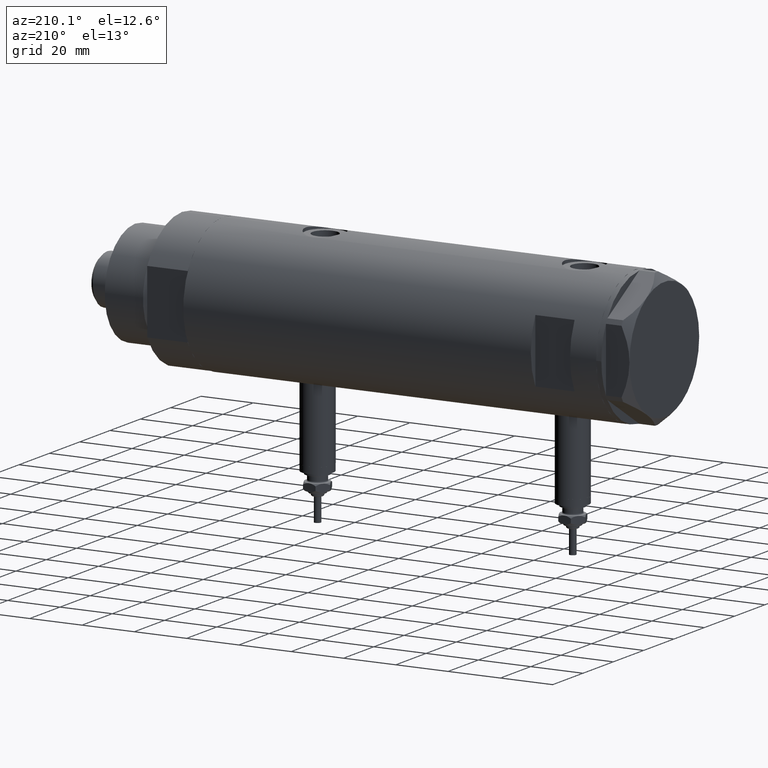
[diagram: clean part render]
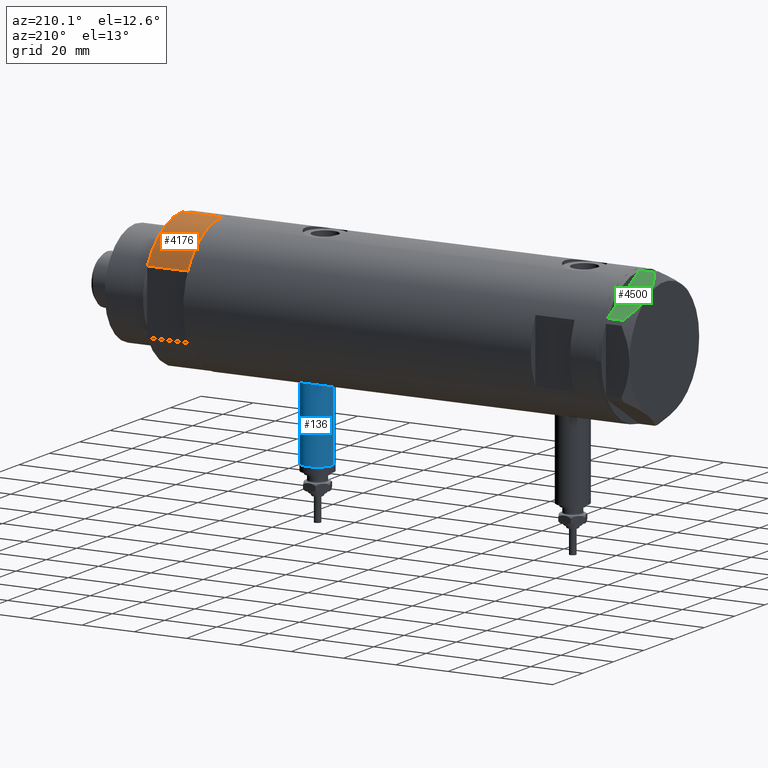
[diagram: same view with three faces highlighted in distinct colors, each labeled with its STEP entity id]
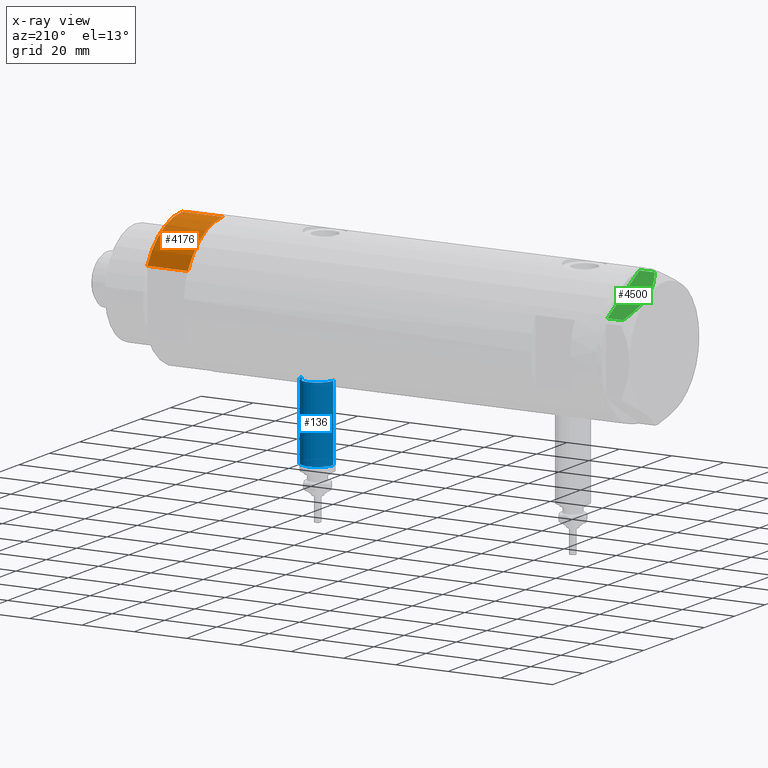
[diagram: x-ray of the same camera — body ghosted, the three highlighted faces saturated]
A machine part, auxiliary view with three faces highlighted in distinct colors.
The next image is the same camera in x-ray (body ghosted, the three faces saturated) — at least one of them is partly hidden behind the body in this view.
Their STEP definitions:

[orange] entity #4176 — the highlighted cylindrical surface (partial cylindrical patch) has radius 26 mm, axis along (-1, -0, 0).
#76 = CARTESIAN_POINT ( 'NONE',  ( -26.00000000000000355, 0.000000000000000000, 15.50000000000000000 ) ) ;
#214 = ORIENTED_EDGE ( 'NONE', *, *, #1456, .F. ) ;
#272 = DIRECTION ( 'NONE',  ( 1.000000000000000000, 0.000000000000000000, 0.000000000000000000 ) ) ;
#549 = DIRECTION ( 'NONE',  ( -0.000000000000000000, -0.000000000000000000, 1.000000000000000000 ) ) ;
#632 = DIRECTION ( 'NONE',  ( 1.000000000000000000, 0.000000000000000000, 0.000000000000000000 ) ) ;
#757 = CARTESIAN_POINT ( 'NONE',  ( 0.000000000000000000, 0.000000000000000000, 0.000000000000000000 ) ) ;
#1139 = FACE_OUTER_BOUND ( 'NONE', #3499, .T. ) ;
#1348 = VECTOR ( 'NONE', #4358, 1000.000000000000000 ) ;
#1423 = EDGE_CURVE ( 'NONE', #1522, #2879, #6005, .T. ) ;
#1456 = EDGE_CURVE ( 'NONE', #4543, #4132, #3965, .T. ) ;
#1522 = VERTEX_POINT ( 'NONE', #2725 ) ;
#1723 = VECTOR ( 'NONE', #549, 1000.000000000000000 ) ;
#2095 = DIRECTION ( 'NONE',  ( 0.000000000000000000, 0.000000000000000000, 1.000000000000000000 ) ) ;
#2122 = AXIS2_PLACEMENT_3D ( 'NONE', #757, #2095, #632 ) ;
#2123 = CARTESIAN_POINT ( 'NONE',  ( -26.00000000000000355, 0.000000000000000000, 0.000000000000000000 ) ) ;
#2129 = ORIENTED_EDGE ( 'NONE', *, *, #4939, .F. ) ;
#2179 = EDGE_CURVE ( 'NONE', #1522, #4543, #4921, .T. ) ;
#2248 = AXIS2_PLACEMENT_3D ( 'NONE', #3081, #3562, #5512 ) ;
#2601 = CYLINDRICAL_SURFACE ( 'NONE', #2248, 26.00000000000000355 ) ;
#2698 = CARTESIAN_POINT ( 'NONE',  ( 0.000000000000000000, 0.000000000000000000, 15.50000000000000000 ) ) ;
#2725 = CARTESIAN_POINT ( 'NONE',  ( -12.12435565298215145, 23.00000000000000355, 0.000000000000000000 ) ) ;
#2879 = VERTEX_POINT ( 'NONE', #2123 ) ;
#3081 = CARTESIAN_POINT ( 'NONE',  ( 0.000000000000000000, 0.000000000000000000, 15.50000000000000000 ) ) ;
#3441 = CARTESIAN_POINT ( 'NONE',  ( -12.12435565298215145, 23.00000000000000355, 0.000000000000000000 ) ) ;
#3499 = EDGE_LOOP ( 'NONE', ( #2129, #214, #5442, #4505 ) ) ;
#3562 = DIRECTION ( 'NONE',  ( -0.000000000000000000, -0.000000000000000000, -1.000000000000000000 ) ) ;
#3916 = LINE ( 'NONE', #4871, #1348 ) ;
#3965 = CIRCLE ( 'NONE', #6207, 26.00000000000000355 ) ;
#4046 = DIRECTION ( 'NONE',  ( 0.000000000000000000, 0.000000000000000000, 1.000000000000000000 ) ) ;
#4132 = VERTEX_POINT ( 'NONE', #76 ) ;
#4176 = ADVANCED_FACE ( 'NONE', ( #1139 ), #2601, .T. ) ;
#4306 = CARTESIAN_POINT ( 'NONE',  ( -12.12435565298214613, 23.00000000000000355, 15.50000000000000000 ) ) ;
#4358 = DIRECTION ( 'NONE',  ( -0.000000000000000000, -0.000000000000000000, -1.000000000000000000 ) ) ;
#4505 = ORIENTED_EDGE ( 'NONE', *, *, #1423, .T. ) ;
#4543 = VERTEX_POINT ( 'NONE', #4306 ) ;
#4871 = CARTESIAN_POINT ( 'NONE',  ( -26.00000000000000355, 0.000000000000000000, 15.50000000000000000 ) ) ;
#4921 = LINE ( 'NONE', #3441, #1723 ) ;
#4939 = EDGE_CURVE ( 'NONE', #4132, #2879, #3916, .T. ) ;
#5442 = ORIENTED_EDGE ( 'NONE', *, *, #2179, .F. ) ;
#5512 = DIRECTION ( 'NONE',  ( -1.000000000000000000, 0.000000000000000000, 0.000000000000000000 ) ) ;
#6005 = CIRCLE ( 'NONE', #2122, 26.00000000000000355 ) ;
#6207 = AXIS2_PLACEMENT_3D ( 'NONE', #2698, #4046, #272 ) ;

[blue] entity #136 — the highlighted cylindrical surface (edge-blend (fillet) strip) has radius 6 mm, axis along (0, 0, 1).
#116 = DIRECTION ( 'NONE',  ( 1.000000000000000000, -0.000000000000000000, -0.000000000000000000 ) ) ;
#136 = ADVANCED_FACE ( 'NONE', ( #4805 ), #5321, .T. ) ;
#363 = CARTESIAN_POINT ( 'NONE',  ( -53.40000000000000568, 0.000000000000000000, -48.65000000000001279 ) ) ;
#573 = EDGE_CURVE ( 'NONE', #4714, #4477, #5788, .T. ) ;
#795 = VECTOR ( 'NONE', #116, 1000.000000000000000 ) ;
#989 = VERTEX_POINT ( 'NONE', #6133 ) ;
#1293 = DIRECTION ( 'NONE',  ( -1.000000000000000000, 0.000000000000000000, 0.000000000000000000 ) ) ;
#1345 = EDGE_CURVE ( 'NONE', #4714, #989, #5386, .T. ) ;
#1364 = DIRECTION ( 'NONE',  ( 0.000000000000000000, 0.000000000000000000, -1.000000000000000000 ) ) ;
#1830 = DIRECTION ( 'NONE',  ( 1.000000000000000000, -0.000000000000000000, -0.000000000000000000 ) ) ;
#1851 = CARTESIAN_POINT ( 'NONE',  ( -53.40000000000000568, 0.000000000000000000, -42.65000000000000568 ) ) ;
#1854 = CIRCLE ( 'NONE', #5430, 6.000000000000005329 ) ;
#1898 = ORIENTED_EDGE ( 'NONE', *, *, #5221, .T. ) ;
#2284 = EDGE_LOOP ( 'NONE', ( #4380, #4929, #1898, #4728 ) ) ;
#2723 = CARTESIAN_POINT ( 'NONE',  ( -24.80000000000000426, 0.000000000000000000, -42.65000000000000568 ) ) ;
#2867 = DIRECTION ( 'NONE',  ( -1.000000000000000000, 0.000000000000000000, 0.000000000000000000 ) ) ;
#2925 = CARTESIAN_POINT ( 'NONE',  ( -53.40000000000000568, 0.000000000000000000, -48.65000000000001279 ) ) ;
#3088 = VECTOR ( 'NONE', #1830, 1000.000000000000000 ) ;
#3125 = CARTESIAN_POINT ( 'NONE',  ( -53.40000000000000568, 7.347880794884119736E-16, -36.64999999999999858 ) ) ;
#3534 = CARTESIAN_POINT ( 'NONE',  ( -53.40000000000000568, 7.347880794884122694E-16, -36.64999999999999858 ) ) ;
#3611 = CARTESIAN_POINT ( 'NONE',  ( -24.80000000000000426, 0.000000000000000000, -48.65000000000001279 ) ) ;
#3747 = DIRECTION ( 'NONE',  ( 0.000000000000000000, 0.000000000000000000, 1.000000000000000000 ) ) ;
#4380 = ORIENTED_EDGE ( 'NONE', *, *, #573, .F. ) ;
#4477 = VERTEX_POINT ( 'NONE', #2925 ) ;
#4664 = AXIS2_PLACEMENT_3D ( 'NONE', #1851, #2867, #5338 ) ;
#4714 = VERTEX_POINT ( 'NONE', #3125 ) ;
#4728 = ORIENTED_EDGE ( 'NONE', *, *, #5343, .F. ) ;
#4734 = LINE ( 'NONE', #363, #3088 ) ;
#4805 = FACE_OUTER_BOUND ( 'NONE', #2284, .T. ) ;
#4929 = ORIENTED_EDGE ( 'NONE', *, *, #1345, .T. ) ;
#5221 = EDGE_CURVE ( 'NONE', #989, #6173, #1854, .T. ) ;
#5321 = CYLINDRICAL_SURFACE ( 'NONE', #5684, 6.000000000000005329 ) ;
#5338 = DIRECTION ( 'NONE',  ( 0.000000000000000000, 0.000000000000000000, 1.000000000000000000 ) ) ;
#5343 = EDGE_CURVE ( 'NONE', #4477, #6173, #4734, .T. ) ;
#5386 = LINE ( 'NONE', #3534, #795 ) ;
#5430 = AXIS2_PLACEMENT_3D ( 'NONE', #2723, #1293, #3747 ) ;
#5684 = AXIS2_PLACEMENT_3D ( 'NONE', #5739, #5768, #1364 ) ;
#5739 = CARTESIAN_POINT ( 'NONE',  ( -53.40000000000000568, 0.000000000000000000, -42.65000000000000568 ) ) ;
#5768 = DIRECTION ( 'NONE',  ( 1.000000000000000000, -0.000000000000000000, -0.000000000000000000 ) ) ;
#5788 = CIRCLE ( 'NONE', #4664, 6.000000000000005329 ) ;
#6133 = CARTESIAN_POINT ( 'NONE',  ( -24.80000000000000426, 7.347880794884119736E-16, -36.64999999999999858 ) ) ;
#6173 = VERTEX_POINT ( 'NONE', #3611 ) ;

[green] entity #4500 — the highlighted planar face has unit normal (-0, -0.5, -0.866).
#42 = VERTEX_POINT ( 'NONE', #4294 ) ;
#254 = CARTESIAN_POINT ( 'NONE',  ( 22.03005154776152352, -13.83905619136116449, 5.983800287807632401 ) ) ;
#455 = CARTESIAN_POINT ( 'NONE',  ( 22.03005154776152352, -13.83905619136116449, 5.983800287807632401 ) ) ;
#470 = LINE ( 'NONE', #5357, #2529 ) ;
#544 = DIRECTION ( 'NONE',  ( -0.8660254037844344888, -0.5000000000000069944, 0.000000000000000000 ) ) ;
#548 = LINE ( 'NONE', #5944, #2217 ) ;
#575 = CARTESIAN_POINT ( 'NONE',  ( 0.9699484522387654684, -25.99811238272272718, 0.000000000000000000 ) ) ;
#679 = CARTESIAN_POINT ( 'NONE',  ( 6.946777556903783513, -22.54738849024392877, 8.426899937603783641 ) ) ;
#766 = EDGE_CURVE ( 'NONE', #4429, #4206, #548, .T. ) ;
#841 = EDGE_CURVE ( 'NONE', #3771, #4648, #5133, .T. ) ;
#1126 = CARTESIAN_POINT ( 'NONE',  ( 9.197898616903062319, -21.24770314027487572, 8.852712638955805957 ) ) ;
#1161 = CARTESIAN_POINT ( 'NONE',  ( 2.626494320835812690, -25.04170517956324460, 6.877782426143459915 ) ) ;
#1215 = CARTESIAN_POINT ( 'NONE',  ( 19.07486218897004093, -15.54523556316577704, 7.397272853991418096 ) ) ;
#1282 = CARTESIAN_POINT ( 'NONE',  ( 22.00000000000017053, -13.85640646055075464, 0.000000000000000000 ) ) ;
#1295 = EDGE_CURVE ( 'NONE', #4648, #42, #470, .T. ) ;
#1307 = VECTOR ( 'NONE', #2011, 1000.000000000000000 ) ;
#1427 = EDGE_LOOP ( 'NONE', ( #4080, #2943, #5379, #2799, #2366, #4560, #3335 ) ) ;
#1608 = CARTESIAN_POINT ( 'NONE',  ( 0.9699484522386233598, -25.99811238272281244, 5.983800287807552465 ) ) ;
#1667 = CARTESIAN_POINT ( 'NONE',  ( 11.50000000000018296, -19.91858428704203732, 9.000000000000000000 ) ) ;
#1728 = VECTOR ( 'NONE', #3479, 1000.000000000000000 ) ;
#1950 = CARTESIAN_POINT ( 'NONE',  ( 0.9699484522387652463, -25.99811238272272718, 9.000000000000000000 ) ) ;
#2011 = DIRECTION ( 'NONE',  ( 0.000000000000000000, 0.000000000000000000, -1.000000000000000000 ) ) ;
#2108 = CARTESIAN_POINT ( 'NONE',  ( 10.58093321976977386, -20.44920774001120733, 8.981686407609503320 ) ) ;
#2120 = EDGE_CURVE ( 'NONE', #4206, #3488, #5466, .T. ) ;
#2177 = CARTESIAN_POINT ( 'NONE',  ( 9.656518383329995459, -20.98291889467261129, 8.907842277728439839 ) ) ;
#2217 = VECTOR ( 'NONE', #3000, 999.9999999999998863 ) ;
#2229 = EDGE_CURVE ( 'NONE', #4582, #3488, #5177, .T. ) ;
#2359 = AXIS2_PLACEMENT_3D ( 'NONE', #4367, #4879, #544 ) ;
#2366 = ORIENTED_EDGE ( 'NONE', *, *, #766, .T. ) ;
#2420 = LINE ( 'NONE', #3436, #5826 ) ;
#2529 = VECTOR ( 'NONE', #5933, 999.9999999999998863 ) ;
#2616 = CARTESIAN_POINT ( 'NONE',  ( 17.77001848220201907, -16.29858742851870090, 7.892128867758446908 ) ) ;
#2649 = CARTESIAN_POINT ( 'NONE',  ( 18.64279229058404752, -15.79469123530767227, 7.570552255229726413 ) ) ;
#2799 = ORIENTED_EDGE ( 'NONE', *, *, #4473, .T. ) ;
#2943 = ORIENTED_EDGE ( 'NONE', *, *, #841, .T. ) ;
#3000 = DIRECTION ( 'NONE',  ( 0.8660254037844345998, 0.5000000000000069944, 0.000000000000000000 ) ) ;
#3033 = CARTESIAN_POINT ( 'NONE',  ( 11.04134848610953235, -20.18338686205092714, 9.000000000000095923 ) ) ;
#3130 = CARTESIAN_POINT ( 'NONE',  ( 13.32175508098997518, -18.86679350063488059, 9.000000000000094147 ) ) ;
#3192 = CARTESIAN_POINT ( 'NONE',  ( 11.50000000000018296, -19.91858428704203732, 9.000000000000000000 ) ) ;
#3335 = ORIENTED_EDGE ( 'NONE', *, *, #2229, .F. ) ;
#3339 = PLANE ( 'NONE',  #2359 ) ;
#3436 = CARTESIAN_POINT ( 'NONE',  ( 1.854543075583504180E-13, -26.55811238272274366, 0.000000000000000000 ) ) ;
#3479 = DIRECTION ( 'NONE',  ( 0.000000000000000000, 0.000000000000000000, 1.000000000000000000 ) ) ;
#3488 = VERTEX_POINT ( 'NONE', #455 ) ;
#3546 = CARTESIAN_POINT ( 'NONE',  ( 22.03005154776152352, -13.83905619136116449, 9.000000000000000000 ) ) ;
#3642 = CARTESIAN_POINT ( 'NONE',  ( 17.32831362639727146, -16.55360584591992890, 8.040681765829337024 ) ) ;
#3771 = VERTEX_POINT ( 'NONE', #4876 ) ;
#3923 = FACE_OUTER_BOUND ( 'NONE', #1427, .T. ) ;
#3954 = DIRECTION ( 'NONE',  ( 0.8660254037844345998, 0.5000000000000069944, 0.000000000000000000 ) ) ;
#4080 = ORIENTED_EDGE ( 'NONE', *, *, #4198, .F. ) ;
#4124 = CARTESIAN_POINT ( 'NONE',  ( 21.20080365460326988, -14.31782268570101735, 6.431317509509397290 ) ) ;
#4198 = EDGE_CURVE ( 'NONE', #3771, #4582, #4377, .T. ) ;
#4206 = VERTEX_POINT ( 'NONE', #5534 ) ;
#4294 = CARTESIAN_POINT ( 'NONE',  ( 1.000000000000106803, -25.98076211353316367, 0.000000000000000000 ) ) ;
#4367 = CARTESIAN_POINT ( 'NONE',  ( 1.854543075583504180E-13, -26.55811238272274366, 9.000000000000000000 ) ) ;
#4377 = B_SPLINE_CURVE_WITH_KNOTS ( 'NONE', 3,
 ( #1608, #1161, #5020, #679, #4604, #1126, #2177, #2108, #3033, #1667 ),
 .UNSPECIFIED., .F., .F.,
 ( 4, 2, 2, 2, 4 ),
 ( 0.001228959670438524313, 0.007497079744270824901, 0.01063113978118697747, 0.01219816979964504985, 0.01376519981810312224 ),
 .UNSPECIFIED. ) ;
#4429 = VERTEX_POINT ( 'NONE', #1282 ) ;
#4473 = EDGE_CURVE ( 'NONE', #42, #4429, #2420, .T. ) ;
#4500 = ADVANCED_FACE ( 'NONE', ( #3923 ), #3339, .F. ) ;
#4560 = ORIENTED_EDGE ( 'NONE', *, *, #2120, .T. ) ;
#4582 = VERTEX_POINT ( 'NONE', #6289 ) ;
#4604 = CARTESIAN_POINT ( 'NONE',  ( 7.836767740116735048, -22.03355241838978884, 8.637313967156950767 ) ) ;
#4648 = VERTEX_POINT ( 'NONE', #575 ) ;
#4876 = CARTESIAN_POINT ( 'NONE',  ( 0.9699484522386233598, -25.99811238272281244, 5.983800287807552465 ) ) ;
#4879 = DIRECTION ( 'NONE',  ( -0.5000000000000071054, 0.8660254037844345998, 0.000000000000000000 ) ) ;
#5020 = CARTESIAN_POINT ( 'NONE',  ( 4.320186229910052411, -24.06385169993491857, 7.629374868826107381 ) ) ;
#5080 = CARTESIAN_POINT ( 'NONE',  ( 20.35958612119336308, -14.80349985506228094, 6.844201024438393510 ) ) ;
#5133 = LINE ( 'NONE', #1950, #1307 ) ;
#5177 = B_SPLINE_CURVE_WITH_KNOTS ( 'NONE', 3,
 ( #3192, #3130, #5591, #3642, #2616, #2649, #1215, #5080, #4124, #254 ),
 .UNSPECIFIED., .F., .F.,
 ( 4, 2, 2, 2, 4 ),
 ( 0.01376519981810312224, 0.01998941321701588197, 0.02154546656674407104, 0.02310151991647226011, 0.02621362661592864518 ),
 .UNSPECIFIED. ) ;
#5357 = CARTESIAN_POINT ( 'NONE',  ( 1.854543075583504180E-13, -26.55811238272274366, 0.000000000000000000 ) ) ;
#5379 = ORIENTED_EDGE ( 'NONE', *, *, #1295, .T. ) ;
#5466 = LINE ( 'NONE', #3546, #1728 ) ;
#5534 = CARTESIAN_POINT ( 'NONE',  ( 22.03005154776152708, -13.83905619136116449, 0.000000000000000000 ) ) ;
#5591 = CARTESIAN_POINT ( 'NONE',  ( 15.11535457301044261, -17.83125835109846591, 8.707651728477005193 ) ) ;
#5826 = VECTOR ( 'NONE', #3954, 999.9999999999998863 ) ;
#5933 = DIRECTION ( 'NONE',  ( 0.8660254037844345998, 0.5000000000000069944, 0.000000000000000000 ) ) ;
#5944 = CARTESIAN_POINT ( 'NONE',  ( 1.854543075583504180E-13, -26.55811238272274366, 0.000000000000000000 ) ) ;
#6289 = CARTESIAN_POINT ( 'NONE',  ( 11.50000000000018296, -19.91858428704203732, 9.000000000000000000 ) ) ;